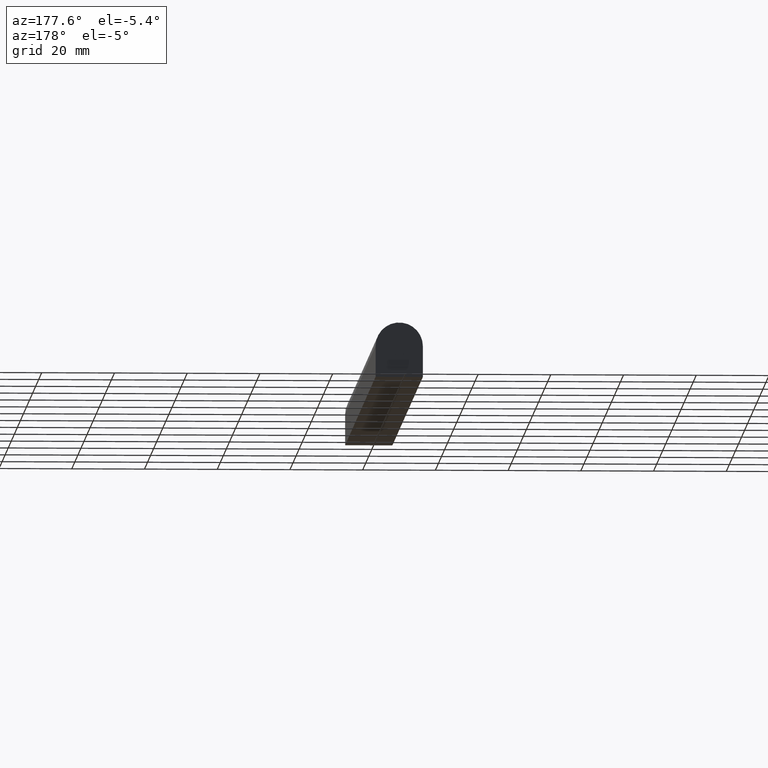
[diagram: clean part render]
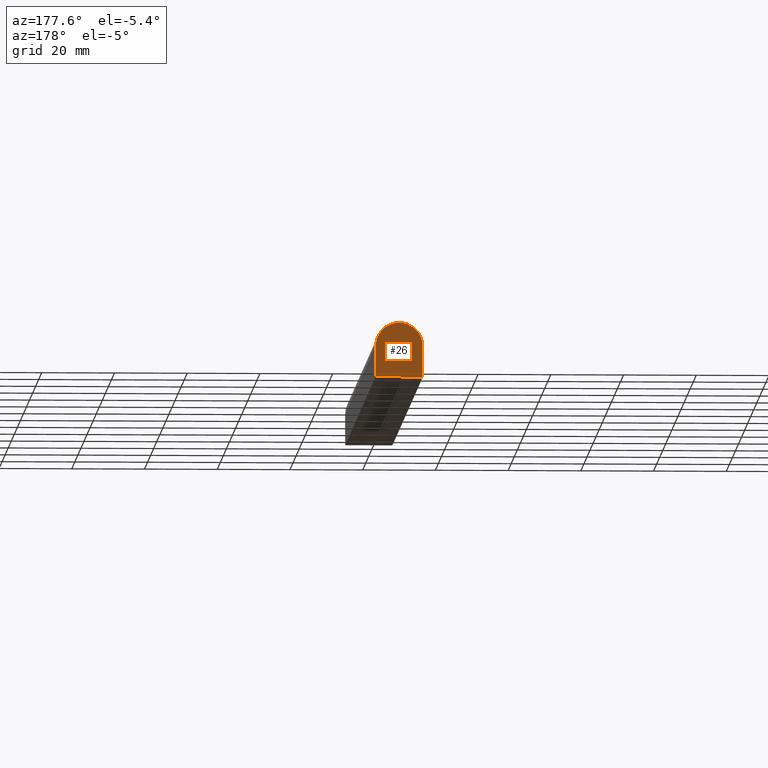
[diagram: same view with one face highlighted and labeled with its STEP entity id]
A machine part, auxiliary view. The second image highlights one B-rep face of the part: STEP entity #26.
In plain terms, the highlighted planar face has unit normal (0, 1, 0).
Its self-contained STEP definition (entity closure, byte-faithful):
#3 = CARTESIAN_POINT ( 'NONE',  ( 0.0000000000000000000, 200.0000000000000000, 0.0000000000000000000 ) ) ;
#10 = EDGE_CURVE ( 'NONE', #21, #200, #40, .T. ) ;
#21 = VERTEX_POINT ( 'NONE', #194 ) ;
#24 = CARTESIAN_POINT ( 'NONE',  ( -6.500000000000000000, 200.0000000000000000, 1.000000000000000000 ) ) ;
#26 = ADVANCED_FACE ( 'NONE', ( #169 ), #148, .T. ) ;
#35 = CARTESIAN_POINT ( 'NONE',  ( 6.500000000000000000, 200.0000000000000000, 1.000000000000000000 ) ) ;
#36 = ORIENTED_EDGE ( 'NONE', *, *, #10, .F. ) ;
#40 = LINE ( 'NONE', #164, #157 ) ;
#52 = EDGE_CURVE ( 'NONE', #200, #63, #104, .T. ) ;
#60 = DIRECTION ( 'NONE',  ( -0.0000000000000000000, -1.000000000000000000, -0.0000000000000000000 ) ) ;
#63 = VERTEX_POINT ( 'NONE', #24 ) ;
#72 = VECTOR ( 'NONE', #120, 1000.000000000000000 ) ;
#75 = ORIENTED_EDGE ( 'NONE', *, *, #103, .F. ) ;
#81 = DIRECTION ( 'NONE',  ( -0.0000000000000000000, -0.0000000000000000000, 1.000000000000000000 ) ) ;
#88 = VECTOR ( 'NONE', #122, 1000.000000000000000 ) ;
#93 = CARTESIAN_POINT ( 'NONE',  ( -6.500000000000000000, 200.0000000000000000, 0.0000000000000000000 ) ) ;
#96 = ORIENTED_EDGE ( 'NONE', *, *, #209, .F. ) ;
#97 = CARTESIAN_POINT ( 'NONE',  ( 0.0000000000000000000, 200.0000000000000000, 1.000000000000000000 ) ) ;
#103 = EDGE_CURVE ( 'NONE', #187, #21, #125, .T. ) ;
#104 = CIRCLE ( 'NONE', #127, 6.500000000000000000 ) ;
#110 = DIRECTION ( 'NONE',  ( -0.0000000000000000000, 1.000000000000000000, 0.0000000000000000000 ) ) ;
#117 = CARTESIAN_POINT ( 'NONE',  ( 0.0000000000000000000, 200.0000000000000000, -7.500000000000000000 ) ) ;
#120 = DIRECTION ( 'NONE',  ( 1.000000000000000000, -0.0000000000000000000, -0.0000000000000000000 ) ) ;
#122 = DIRECTION ( 'NONE',  ( -0.0000000000000000000, -0.0000000000000000000, -1.000000000000000000 ) ) ;
#125 = LINE ( 'NONE', #117, #72 ) ;
#127 = AXIS2_PLACEMENT_3D ( 'NONE', #97, #60, #185 ) ;
#135 = ORIENTED_EDGE ( 'NONE', *, *, #52, .F. ) ;
#137 = LINE ( 'NONE', #93, #88 ) ;
#148 = PLANE ( 'NONE',  #214 ) ;
#157 = VECTOR ( 'NONE', #81, 1000.000000000000000 ) ;
#164 = CARTESIAN_POINT ( 'NONE',  ( 6.500000000000000000, 200.0000000000000000, 0.0000000000000000000 ) ) ;
#169 = FACE_OUTER_BOUND ( 'NONE', #181, .T. ) ;
#181 = EDGE_LOOP ( 'NONE', ( #75, #96, #135, #36 ) ) ;
#185 = DIRECTION ( 'NONE',  ( 0.0000000000000000000, 0.0000000000000000000, 1.000000000000000000 ) ) ;
#187 = VERTEX_POINT ( 'NONE', #190 ) ;
#190 = CARTESIAN_POINT ( 'NONE',  ( -6.500000000000000000, 200.0000000000000000, -7.500000000000000000 ) ) ;
#194 = CARTESIAN_POINT ( 'NONE',  ( 6.500000000000000000, 200.0000000000000000, -7.500000000000000000 ) ) ;
#200 = VERTEX_POINT ( 'NONE', #35 ) ;
#209 = EDGE_CURVE ( 'NONE', #63, #187, #137, .T. ) ;
#214 = AXIS2_PLACEMENT_3D ( 'NONE', #3, #110, #222 ) ;
#222 = DIRECTION ( 'NONE',  ( 1.000000000000000000, 0.0000000000000000000, 0.0000000000000000000 ) ) ;